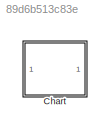
MODEL slx_89d6b513c83e
KIND model
CONFIG AbsTol = auto
CONFIG EnableMultiTasking = off
CONFIG FixedStep = auto
CONFIG MaxStep = auto
CONFIG MinStep = auto
CONFIG RelTol = 1e-3
CONFIG SampleTimeConstraint = Unconstrained
CONFIG SolverName = VariableStepAuto
CONFIG StartTime = 0.0
CONFIG StopTime = 0.1
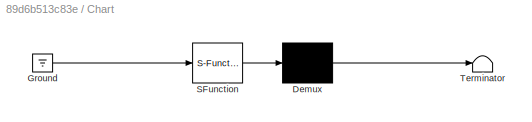
BLOCK [SubSystem] Chart
  ErrorFcn = Stateflow.Translate.translate
  PermitHierarchicalResolution = ExplicitOnly
  Ports = []
  RequestExecContextInheritance = off
  SFBlockType = Chart
  TreatAsAtomicUnit = on
BLOCK [Demux] Chart/ Demux 
  Outputs = 1
  Ports = [1, 1]
BLOCK [Ground] Chart/ Ground 
BLOCK [S-Function] Chart/ SFunction 
  EnableBusSupport = off
  FunctionName = sf_sfun
  PortCounts = [1 1]
  Ports = [1, 1]
  SFcnIsStateOwnerBlock = off
  SFunctionDeploymentMode = off
  Tag = Stateflow S-Function 3
BLOCK [Terminator] Chart/ Terminator 
CHART Chart states=10 transitions=10
  STATE_LABEL 'AM'
  STATE_LABEL 'A'
  STATE_LABEL 'A1\nen: fprintf("en_A1")\nex: fprintf("ex_A1")'
  STATE_LABEL 'A2\nen: fprintf("en_A2")\nex: fprintf("ex_A2")'
  STATE_LABEL '[data==1]{B.E_one}'
  STATE_LABEL 'E_two'
  STATE_LABEL 'B'
  STATE_LABEL 'A2\nen: fprintf("en_B2_A2")\nex: fprintf("ex_B2_A2")'
  STATE_LABEL 'A1\nen: fprintf("en_B1_A1")\nex: fprintf("ex_B1_A1")'
  STATE_LABEL 'E_one{C.E_one}'
  STATE_LABEL 'E_two{A.E_two}'
  STATE_LABEL 'C'
  STATE_LABEL 'A2\nen: fprintf("en_C2_A2")\nex: fprintf("ex_C2_A2")'
  STATE_LABEL 'A1\nen: fprintf("en_C1_A1")\nex: fprintf("ex_C1_A1")'
  STATE_LABEL 'E_one'
  STATE_LABEL '[data==1]{B.E_two}'
  STATE_LABEL 'A'
  STATE_LABEL 'A1\nen: fprintf("en_A1")\nex: fprintf("ex_A1")'
  STATE_LABEL 'A2\nen: fprintf("en_A2")\nex: fprintf("ex_A2")'
  STATE_LABEL '[data==1]{B.E_one}'
  STATE_LABEL 'E_two'
  STATE_LABEL 'A1\nen: fprintf("en_A1")\nex: fprintf("ex_A1")'
  STATE_LABEL 'A2\nen: fprintf("en_A2")\nex: fprintf("ex_A2")'
  STATE_LABEL 'B'
  STATE_LABEL 'A2\nen: fprintf("en_B2_A2")\nex: fprintf("ex_B2_A2")'
  STATE_LABEL 'A1\nen: fprintf("en_B1_A1")\nex: fprintf("ex_B1_A1")'
  STATE_LABEL 'E_one{C.E_one}'
  STATE_LABEL 'E_two{A.E_two}'
  STATE_LABEL 'A2\nen: fprintf("en_B2_A2")\nex: fprintf("ex_B2_A2")'
  STATE_LABEL 'A1\nen: fprintf("en_B1_A1")\nex: fprintf("ex_B1_A1")'
  STATE_LABEL 'C'
  STATE_LABEL 'A2\nen: fprintf("en_C2_A2")\nex: fprintf("ex_C2_A2")'
  STATE_LABEL 'A1\nen: fprintf("en_C1_A1")\nex: fprintf("ex_C1_A1")'
  STATE_LABEL 'E_one'
  STATE_LABEL '[data==1]{B.E_two}'
  STATE_LABEL 'A2\nen: fprintf("en_C2_A2")\nex: fprintf("ex_C2_A2")'
  STATE_LABEL 'A1\nen: fprintf("en_C1_A1")\nex: fprintf("ex_C1_A1")'
CHART  states=0 transitions=0
